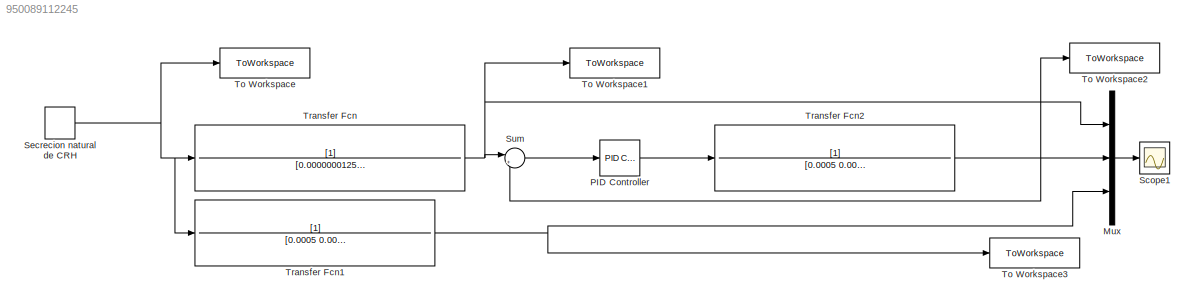
MODEL slx_950089112245
KIND model
CONFIG AbsTol = auto
CONFIG EnableMultiTasking = off
CONFIG FixedStep = 1E-5
CONFIG MaxStep = 1E-3
CONFIG MinStep = auto
CONFIG RelTol = 1e-3
CONFIG SampleTimeConstraint = Unconstrained
CONFIG SolverName = ode2
CONFIG StartTime = 0.0
CONFIG StopTime = 20
BLOCK [Mux] Mux
  DisplayOption = bar
  Inputs = 3
BLOCK [Reference] PID Controller  REF=slpidlib/PID Controller
  LibrarySourceBlock = simulink/Continuous/PID Controller
  SourceBlock = slpidlib/PID Controller
  SourceType = PID 1dof
BLOCK [Scope] Scope1
  Floating = off
  NumInputPorts = 1
  ScopeSpecificationString = Simulink.scopes.TimeScopeBlockCfg('CurrentConfiguration', extmgr.ConfigurationSet(extmgr.Configuration('Core','General UI',true,'FigureColor',[0 0 0]),extmgr.Configuration('Core','Source UI',true),extmgr.Configuration('Sources','WiredSimulink',true),extmgr.Configuration('Visuals','Time Domain',true,'SerializedDisplays',{struct('MinYLimReal','-0.125','MaxYLimReal','4.12504','YLabelReal','','MinYLim...<+1681ch>
BLOCK [DiscretePulseGenerator] Secrecion natural de CRH
  Amplitude = 4
  Period = 1/0.5
  PhaseDelay = 1
  PulseType = Time based
  PulseWidth = 50
BLOCK [Sum] Sum
  Inputs = |+-
BLOCK [ToWorkspace] To Workspace
  FixptAsFi = on
  MaxDataPoints = inf
  SampleTime = -1
  VariableName = CRH
BLOCK [ToWorkspace] To Workspace1
  FixptAsFi = on
  MaxDataPoints = inf
  SampleTime = -1
  VariableName = Cort1
BLOCK [ToWorkspace] To Workspace2
  FixptAsFi = on
  MaxDataPoints = inf
  SampleTime = -1
  VariableName = Cort2
BLOCK [ToWorkspace] To Workspace3
  FixptAsFi = on
  MaxDataPoints = inf
  SampleTime = -1
  VariableName = Cort3
BLOCK [TransferFcn] Transfer Fcn
  Denominator = [0.0000000125 0.0000185 0.0305 1]
BLOCK [TransferFcn] Transfer Fcn1
  Denominator = [0.0005  0.0036 0.5007 1]
BLOCK [TransferFcn] Transfer Fcn2
  Denominator = [0.0005  0.0036 0.5007 1]
LINE Mux:1 -> Scope1:1
LINE PID Controller:1 -> Transfer Fcn2:1
NET Secrecion natural de CRH:1 -> To Workspace:1, Transfer Fcn1:1, Transfer Fcn:1
LINE Sum:1 -> PID Controller:1
NET Transfer Fcn1:1 -> Mux:3, To Workspace3:1
NET Transfer Fcn2:1 -> Mux:2, Sum:2, To Workspace2:1
NET Transfer Fcn:1 -> Mux:1, Sum:1, To Workspace1:1
note: NET lines group one-source signal fan-out (src -> all destinations, sorted); 1:1 wires keep LINE
